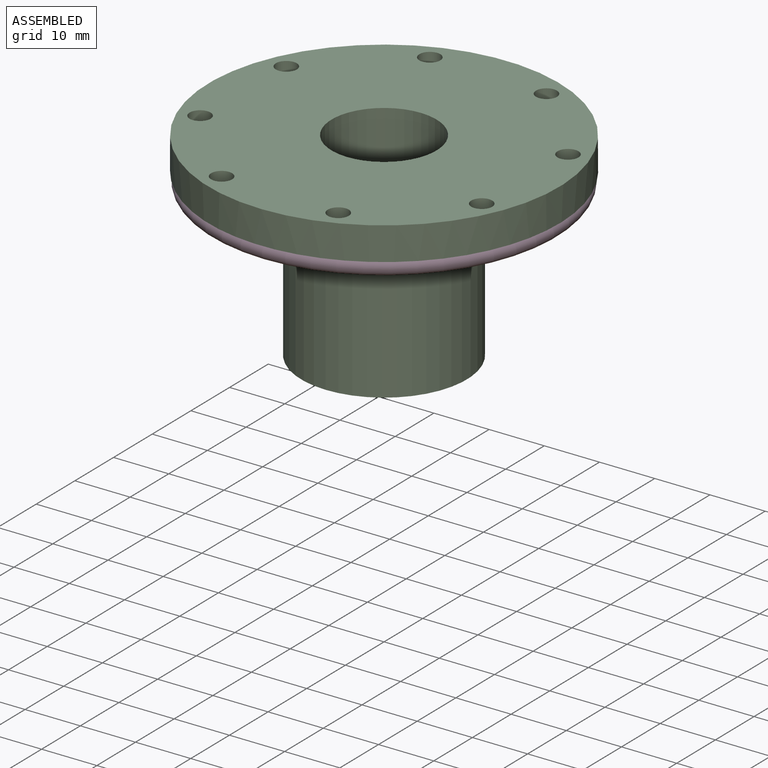
[diagram: assembled view]
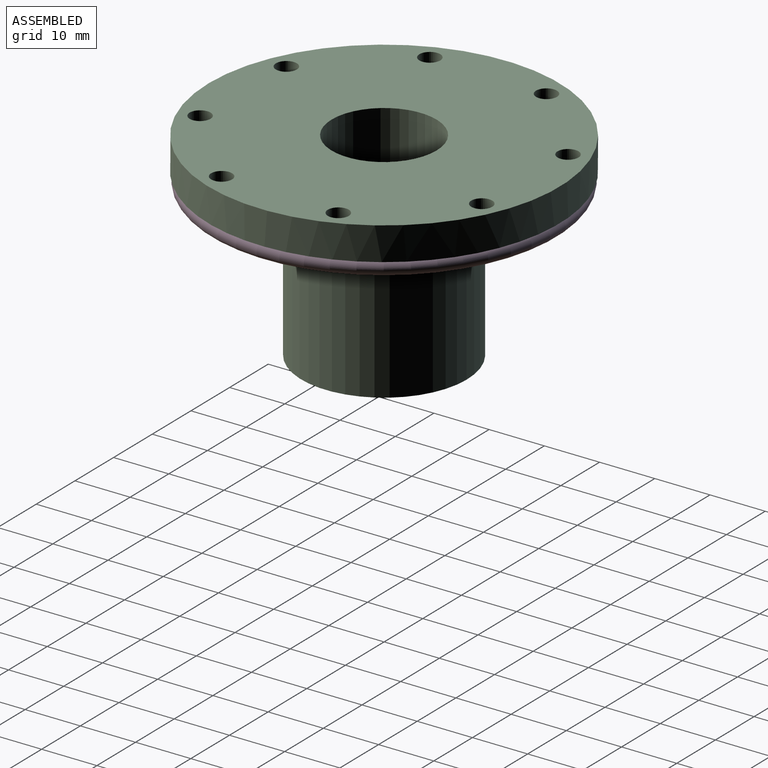
[diagram: assembled view, second angle]
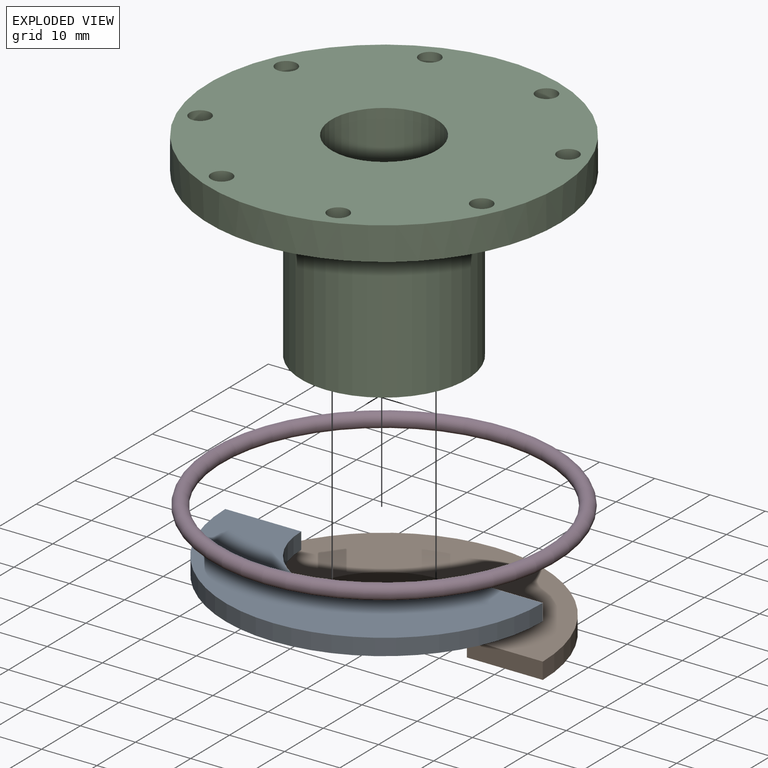
[diagram: exploded view]
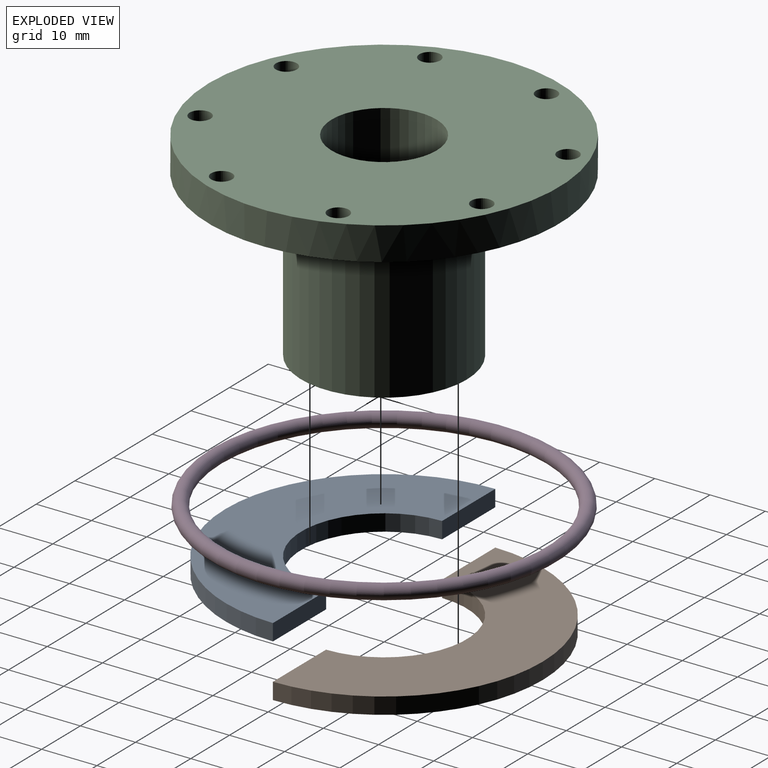
[diagram: exploded view, second angle]
ASSEMBLY  parts=4 mates=7
PART A: 6 faces, bbox 57.5x3x28.8 mm
  f0: cylinder r=15mm len=30mm, axis (0,-1,0), area 141.4mm2, adj f1,f3,f4,f5
  f1: plane 13.75x3mm, normal (0,0,1), area 41.2mm2, adj f0,f2,f4,f5
  f2: cylinder r=28.75mm len=57.5mm, axis (0,-1,0), area 271mm2, adj f1,f3,f4,f5
  f3: plane 13.75x3mm, normal (0,0,1), area 41.2mm2, adj f0,f2,f4,f5
  f4: plane 57.5x28.75mm, normal (0,1,0), area 944.9mm2, adj f0,f1,f2,f3
  f5: plane 57.5x28.75mm, normal (0,-1,0), area 944.9mm2, adj f0,f1,f2,f3
PART B: same geometry as A
PART C: 22 faces, bbox 63.5x36x63.5 mm
  f0: cylinder r=31.75mm len=63.5mm, axis (0,-1,0), area 1196.9mm2, adj f1,f2
  f1: plane 63.5x63.5mm, normal (0,1,0), area 2144.5mm2, adj f0,f4,f7,f9,f11,f13,f15,f17
  f2: plane 63.5x63.5mm, normal (0,-1,0), area 2792.8mm2, adj f0,f5,f6,f8,f10,f12,f14,f16
  f3: plane 30x30mm, normal (0,1,0), area 423.3mm2, adj f4,f5
  f4: cylinder r=15mm len=30mm, axis (0,-1,0), area 2827.4mm2, adj f1,f3
  f5: cylinder r=9.5mm len=36mm, axis (0,-1,0), area 2148.8mm2, adj f2,f3
  f6: cylinder r=1.9mm len=4.62mm, axis (0,1,0), area 55.1mm2, adj f2,f7
  f7: cone r=3.54mm half-angle=50deg, axis (0,1,0), area 36.7mm2, adj f1,f6
  f8: cylinder r=1.9mm len=4.62mm, axis (0,1,0), area 55.1mm2, adj f2,f9
  f9: cone r=3.54mm half-angle=50deg, axis (0,1,0), area 36.7mm2, adj f1,f8
  f10: cylinder r=1.9mm len=4.62mm, axis (0,1,0), area 55.1mm2, adj f2,f11
  f11: cone r=3.54mm half-angle=50deg, axis (0,1,0), area 36.7mm2, adj f1,f10
  f12: cylinder r=1.9mm len=4.62mm, axis (0,1,0), area 55.1mm2, adj f2,f13
  f13: cone r=3.54mm half-angle=50deg, axis (0,1,0), area 36.7mm2, adj f1,f12
  f14: cylinder r=1.9mm len=4.62mm, axis (0,1,0), area 55.1mm2, adj f2,f15
  f15: cone r=3.54mm half-angle=50deg, axis (0,1,0), area 36.7mm2, adj f1,f14
  f16: cylinder r=1.9mm len=4.62mm, axis (0,1,0), area 55.1mm2, adj f2,f17
  f17: cone r=3.54mm half-angle=50deg, axis (0,1,0), area 36.7mm2, adj f1,f16
  f18: cylinder r=1.9mm len=4.62mm, axis (0,1,0), area 55.1mm2, adj f2,f19
  f19: cone r=3.54mm half-angle=50deg, axis (0,1,0), area 36.7mm2, adj f1,f18
  f20: cylinder r=1.9mm len=4.62mm, axis (0,1,0), area 55.1mm2, adj f2,f21
  f21: cone r=3.54mm half-angle=50deg, axis (0,1,0), area 36.7mm2, adj f1,f20
PART D: 1 faces, bbox 68.3x2.6x68.3 mm
  f0: torus R=30.25mm, axis (0,-1,0), area 1564.4mm2
PLACE A rot(axis=(-1,0,0),90deg) t=(0,0,-7.5)mm
PLACE B rot(axis=(0,-0.71,0.71),180deg) t=(0,0,-7.5)mm
PLACE C rot(axis=(-0.44,-0.64,0.64),132.8deg) t=(0,0,0)mm
PLACE D rot(axis=(-1,0,0),90deg) t=(0,0,-7.4)mm
MATE cylindrical B.f0 <-> C.f0  axis (0,0,1) through (0,0,-7.5)mm
MATE planar B.f4 <-> A.f4  axis (0,0,-1) through (0,14.38,-9)mm
MATE planar D.f0 <-> C.f0  axis (0,0,1) through (0,0,-7.4)mm
MATE planar A.f5 <-> C.f0  axis (0,0,1) through (0,-14.38,-6)mm
MATE planar B.f5 <-> C.f0  axis (0,0,1) through (0,14.38,-6)mm
MATE cylindrical A.f0 <-> C.f0  axis (0,0,1) through (0,0,-7.5)mm
MATE cylindrical D.f0 <-> B.f0  axis (0,0,1) through (0,0,-7.4)mm
